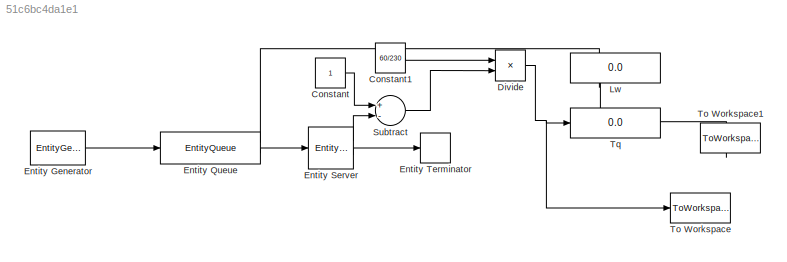
MODEL slx_51c6bc4da1e1
KIND model
CONFIG AbsTol = auto
CONFIG EnableMultiTasking = off
CONFIG FixedStep = auto
CONFIG MaxStep = auto
CONFIG MinStep = auto
CONFIG RelTol = 1e-3
CONFIG SampleTimeConstraint = Unconstrained
CONFIG Solver = VariableStepAuto
CONFIG SolverName = VariableStepAuto
CONFIG StartTime = 0.0
CONFIG StopTime = 1e5
BLOCK [Constant] Constant
BLOCK [Constant] Constant1
  Value = 60/230
BLOCK [Product] Divide
  InputSameDT = off
  Inputs = */
  OutDataTypeStr = Inherit: Inherit via internal rule
  Ports = [2, 1]
  RndMeth = Floor
  SaturateOnIntegerOverflow = off
BLOCK [EntityGenerator] Entity Generator
  AttributeName = ClassA
  EntityType = Structured
  EntityTypeName = Entity
  GenerateAction = persistent rngInit;\nif isempty(rngInit)\n    seed = 15318;\n    rng(seed);\n    rngInit = true;\nend\n\n% Pattern: Arbitrary discrete distribution\n% V: Value vector\n% P: Probability vector\nV = [1 2];\nP = [0.2 0.8];\nentity.ClassA = randsample(V, 1, true, P);
  IntergenerationTimeAction = dt = rand(1,1);\npersistent rngInit;\nif isempty(rngInit)\n    seed = 12345;\n    rng(seed);\n    rngInit = true;\nend\n\n% Pattern: Exponential distribution\nmu = 60/220;\ndt = -mu * log(1 - rand());
  OutputPortMap = o3
  OutputPortMessageModes = m
  Ports = [0, 1]
  TimeSource = MATLAB action
BLOCK [EntityQueue] Entity Queue
  AverageQueueLength = on
  Capacity = inf
  InputPortMap = u0
  InputPortMessageModes = m
  OutputPortMap = o3,o5
  OutputPortMessageModes = n,m
  Ports = [1, 2]
  PrioritySource = ClassA
BLOCK [EntityServer] Entity Server
  Capacity = c
  InputPortMap = u2
  InputPortMessageModes = m
  OutputPortMap = o5,o9
  OutputPortMessageModes = n,m
  Ports = [1, 2]
  ServiceTimeAction = dt = rand(1,1);\npersistent rngInit;\nif isempty(rngInit)\n    seed = 845889;\n    rng(seed);\n    rngInit = true;\nend\n\n% Pattern: Exponential distribution\nmu = 60/230;\ndt = -mu * log(1 - rand());
  ServiceTimeAttributeName = ClassA
  ServiceTimeSource = MATLAB action
  ServiceTimeValue = 60/220
  Utilization = on
BLOCK [EntityTerminator] Entity Terminator
  InputPortMap = u0
  InputPortMessageModes = m
  Ports = [1]
BLOCK [Display] Lw
  Decimation = 1
  Ports = [1]
BLOCK [Sum] Subtract
  InputSameDT = off
  Inputs = +-
  OutDataTypeStr = Inherit: Inherit via internal rule
  Ports = [2, 1]
  SaturateOnIntegerOverflow = off
BLOCK [ToWorkspace] To Workspace
  FixptAsFi = on
  MaxDataPoints = inf
  Ports = [1]
  SampleTime = -1
  Save2DSignal = 2-D array (concatenate along first dimension)
  VariableName = TqOut
BLOCK [ToWorkspace] To Workspace1
  FixptAsFi = on
  MaxDataPoints = inf
  Ports = [1]
  SampleTime = -1
  Save2DSignal = 2-D array (concatenate along first dimension)
  VariableName = LwOut
BLOCK [Display] Tq
  Decimation = 1
  Ports = [1]
LINE Constant1:1 -> Divide:1
LINE Constant:1 -> Subtract:1
NET Divide:1 -> To Workspace:1, Tq:1
LINE Entity Generator:1 -> Entity Queue:1
NET Entity Queue:1 -> Lw:1, To Workspace1:1
LINE Entity Queue:2 -> Entity Server:1
LINE Entity Server:1 -> Subtract:2
LINE Entity Server:2 -> Entity Terminator:1
LINE Subtract:1 -> Divide:2
note: NET lines group one-source signal fan-out (src -> all destinations, sorted); 1:1 wires keep LINE
